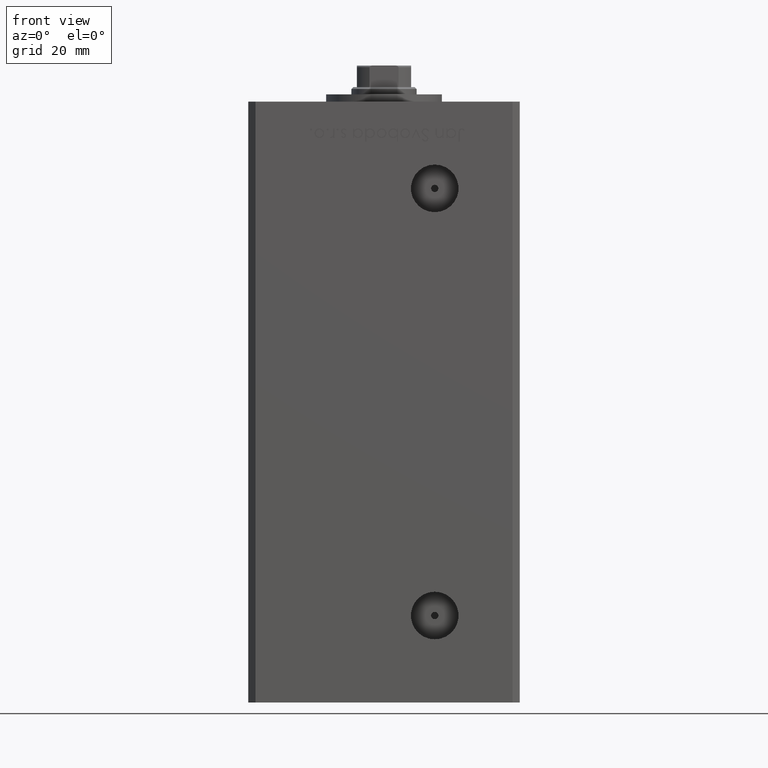
[diagram: clean part render]
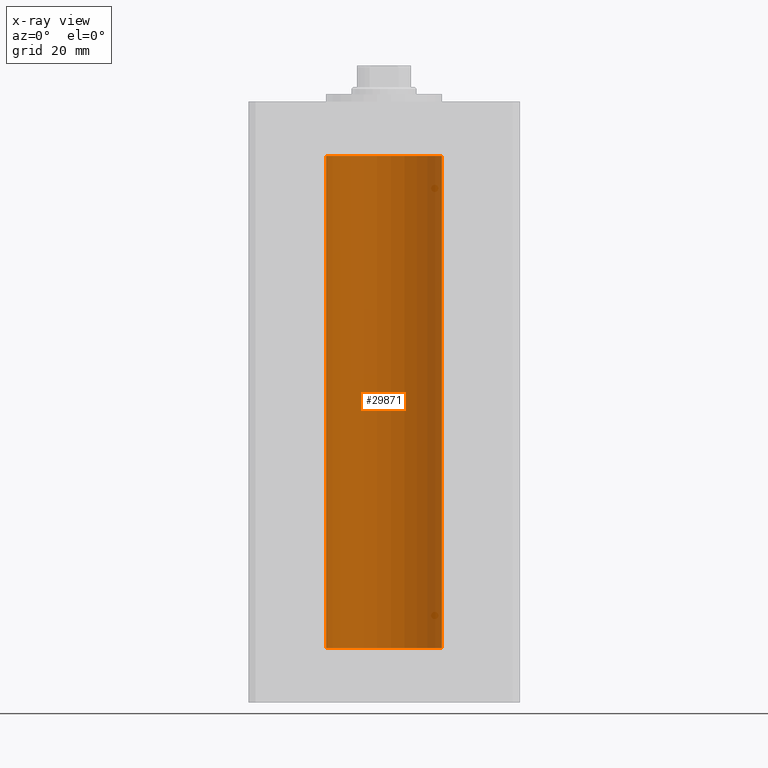
[diagram: x-ray — body ghosted, one internal face saturated and labeled with its STEP entity id]
A machine part, front view, then the same camera in x-ray: the body is ghosted and one INTERNAL B-rep face — a face not visible from any outside direction — is saturated and labeled: STEP entity #29871.
In plain terms, the highlighted cylindrical surface (partial cylindrical patch) has radius 16 mm, axis along (-0, -0, -1).
Its self-contained STEP definition (entity closure, byte-faithful):
#1038 = CARTESIAN_POINT ( 'NONE',  ( 0.000000000000000000, 0.000000000000000000, 136.0000000000000000 ) ) ;
#3697 = CARTESIAN_POINT ( 'NONE',  ( -16.00000000000000000, 0.000000000000000000, 136.0000000000000000 ) ) ;
#3924 = VECTOR ( 'NONE', #37038, 1000.000000000000000 ) ;
#5247 = CARTESIAN_POINT ( 'NONE',  ( 0.000000000000000000, 0.000000000000000000, 0.000000000000000000 ) ) ;
#6451 = ORIENTED_EDGE ( 'NONE', *, *, #23377, .T. ) ;
#8274 = LINE ( 'NONE', #48924, #3924 ) ;
#9030 = CARTESIAN_POINT ( 'NONE',  ( 16.00000000000000000, 1.959434878635765131E-15, 136.0000000000000000 ) ) ;
#9216 = DIRECTION ( 'NONE',  ( 1.000000000000000000, 0.000000000000000000, 0.000000000000000000 ) ) ;
#9475 = EDGE_CURVE ( 'NONE', #48763, #42825, #15011, .T. ) ;
#11385 = LINE ( 'NONE', #27474, #13480 ) ;
#11613 = FACE_OUTER_BOUND ( 'NONE', #45881, .T. ) ;
#12892 = DIRECTION ( 'NONE',  ( -0.000000000000000000, 0.000000000000000000, 1.000000000000000000 ) ) ;
#13127 = VERTEX_POINT ( 'NONE', #9030 ) ;
#13480 = VECTOR ( 'NONE', #31708, 1000.000000000000000 ) ;
#14644 = CARTESIAN_POINT ( 'NONE',  ( 16.00000000000000000, 1.959434878635765131E-15, 0.000000000000000000 ) ) ;
#15011 = CIRCLE ( 'NONE', #36094, 16.00000000000000000 ) ;
#18669 = ORIENTED_EDGE ( 'NONE', *, *, #50818, .F. ) ;
#19839 = ORIENTED_EDGE ( 'NONE', *, *, #35567, .T. ) ;
#20764 = AXIS2_PLACEMENT_3D ( 'NONE', #40124, #43039, #35906 ) ;
#23377 = EDGE_CURVE ( 'NONE', #13127, #32826, #37219, .T. ) ;
#25309 = DIRECTION ( 'NONE',  ( -0.000000000000000000, 0.000000000000000000, 1.000000000000000000 ) ) ;
#27474 = CARTESIAN_POINT ( 'NONE',  ( 16.00000000000000000, 1.959434878635765131E-15, 136.0000000000000000 ) ) ;
#29000 = DIRECTION ( 'NONE',  ( 1.000000000000000000, 0.000000000000000000, 0.000000000000000000 ) ) ;
#29871 = ADVANCED_FACE ( 'NONE', ( #11613 ), #44087, .F. ) ;
#30874 = ORIENTED_EDGE ( 'NONE', *, *, #9475, .F. ) ;
#31708 = DIRECTION ( 'NONE',  ( -0.000000000000000000, -0.000000000000000000, -1.000000000000000000 ) ) ;
#32019 = CARTESIAN_POINT ( 'NONE',  ( -16.00000000000000000, 0.000000000000000000, 0.000000000000000000 ) ) ;
#32826 = VERTEX_POINT ( 'NONE', #3697 ) ;
#33003 = AXIS2_PLACEMENT_3D ( 'NONE', #1038, #12892, #29000 ) ;
#35567 = EDGE_CURVE ( 'NONE', #32826, #42825, #8274, .T. ) ;
#35906 = DIRECTION ( 'NONE',  ( -1.000000000000000000, 0.000000000000000000, 0.000000000000000000 ) ) ;
#36094 = AXIS2_PLACEMENT_3D ( 'NONE', #5247, #25309, #9216 ) ;
#37038 = DIRECTION ( 'NONE',  ( -0.000000000000000000, -0.000000000000000000, -1.000000000000000000 ) ) ;
#37219 = CIRCLE ( 'NONE', #33003, 16.00000000000000000 ) ;
#40124 = CARTESIAN_POINT ( 'NONE',  ( 0.000000000000000000, 0.000000000000000000, 136.0000000000000000 ) ) ;
#42825 = VERTEX_POINT ( 'NONE', #32019 ) ;
#43039 = DIRECTION ( 'NONE',  ( -0.000000000000000000, -0.000000000000000000, -1.000000000000000000 ) ) ;
#44087 = CYLINDRICAL_SURFACE ( 'NONE', #20764, 16.00000000000000000 ) ;
#45881 = EDGE_LOOP ( 'NONE', ( #18669, #6451, #19839, #30874 ) ) ;
#48763 = VERTEX_POINT ( 'NONE', #14644 ) ;
#48924 = CARTESIAN_POINT ( 'NONE',  ( -16.00000000000000000, 0.000000000000000000, 136.0000000000000000 ) ) ;
#50818 = EDGE_CURVE ( 'NONE', #13127, #48763, #11385, .T. ) ;